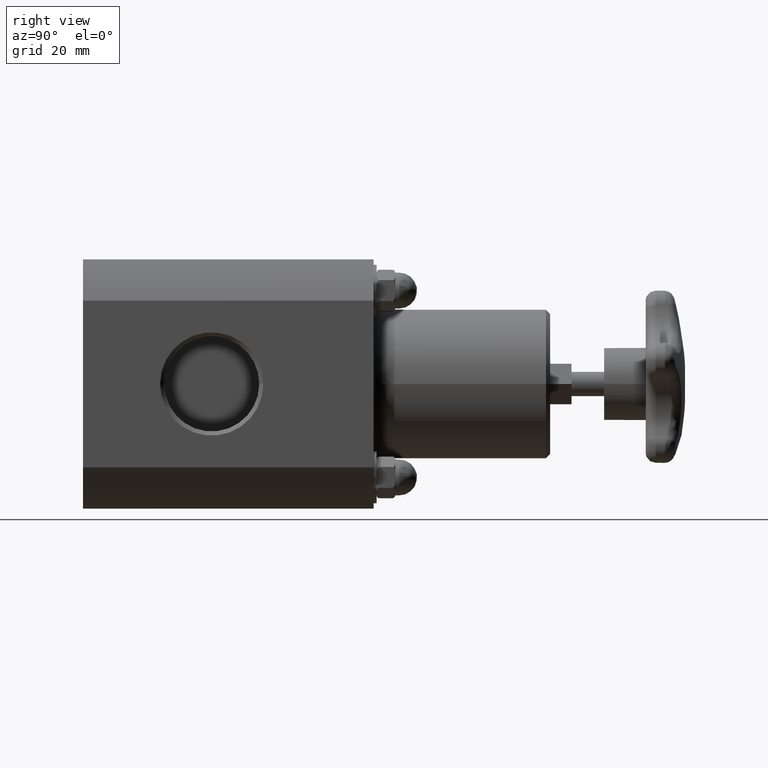
[diagram: clean part render]
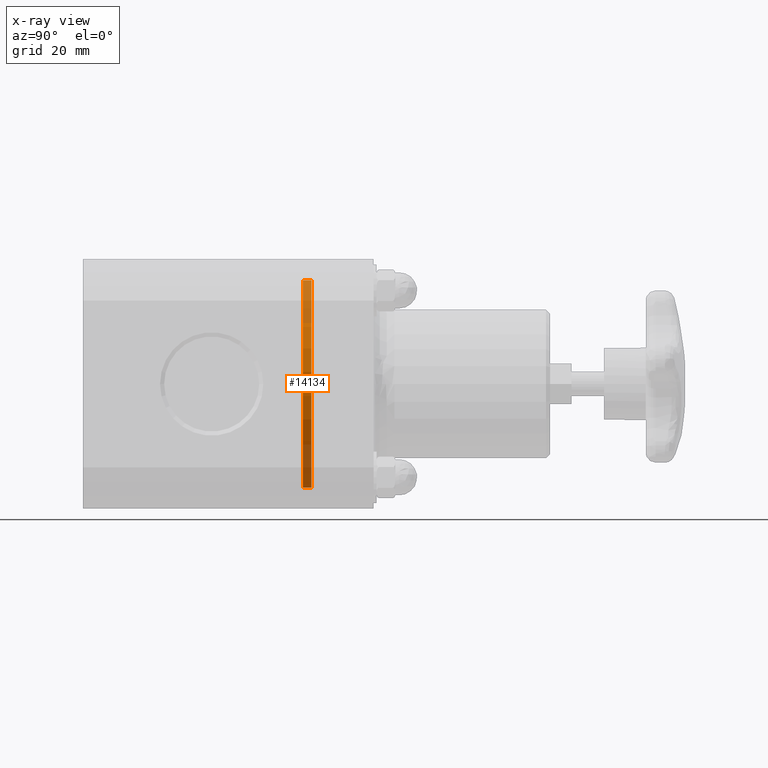
[diagram: x-ray — body ghosted, one internal face saturated and labeled with its STEP entity id]
A machine part, right view, then the same camera in x-ray: the body is ghosted and one INTERNAL B-rep face — a face not visible from any outside direction — is saturated and labeled: STEP entity #14134.
In plain terms, the highlighted cylindrical surface (bore or boss wall) has radius 31.75 mm, axis along (0, 1, -0).
Its self-contained STEP definition (entity closure, byte-faithful):
#14107=CARTESIAN_POINT('',(3.514723E-015,2.615000000000001,8.188065E-016));
#14108=DIRECTION('',(8.118506E-016,1.0,-2.241518E-016));
#14109=DIRECTION('',(1.0,0.0,0.0));
#14110=AXIS2_PLACEMENT_3D('',#14107,#14108,#14109);
#14111=CYLINDRICAL_SURFACE('',#14110,1.250000000000000);
#14112=CARTESIAN_POINT('',(-1.249999999999996,2.750000000000002,1.290740E-015));
#14113=VERTEX_POINT('',#14112);
#14114=CARTESIAN_POINT('',(3.624323E-015,2.750000000000003,7.885460E-016));
#14115=DIRECTION('',(0.0,1.0,0.0));
#14116=DIRECTION('',(1.0,0.0,0.0));
#14117=AXIS2_PLACEMENT_3D('',#14114,#14115,#14116);
#14118=CIRCLE('',#14117,1.250000000000000);
#14119=EDGE_CURVE('',#14113,#14113,#14118,.T.);
#14120=ORIENTED_EDGE('',*,*,#14119,.F.);
#14121=EDGE_LOOP('',(#14120));
#14122=FACE_OUTER_BOUND('',#14121,.T.);
#14123=CARTESIAN_POINT('',(-1.249999999999996,2.650000000000000,1.006993E-015));
#14124=VERTEX_POINT('',#14123);
#14125=CARTESIAN_POINT('',(3.543138E-015,2.649999999999998,8.109612E-016));
#14126=DIRECTION('',(0.0,-1.0,0.0));
#14127=DIRECTION('',(1.0,0.0,0.0));
#14128=AXIS2_PLACEMENT_3D('',#14125,#14126,#14127);
#14129=CIRCLE('',#14128,1.250000000000000);
#14130=EDGE_CURVE('',#14124,#14124,#14129,.T.);
#14131=ORIENTED_EDGE('',*,*,#14130,.F.);
#14132=EDGE_LOOP('',(#14131));
#14133=FACE_BOUND('',#14132,.T.);
#14134=ADVANCED_FACE('',(#14122,#14133),#14111,.T.);